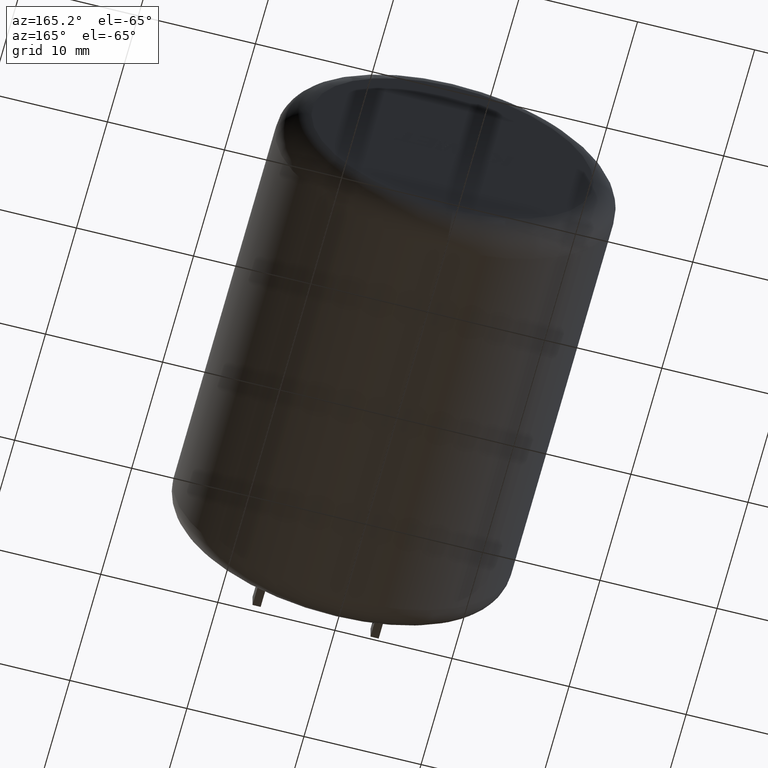
[diagram: clean part render]
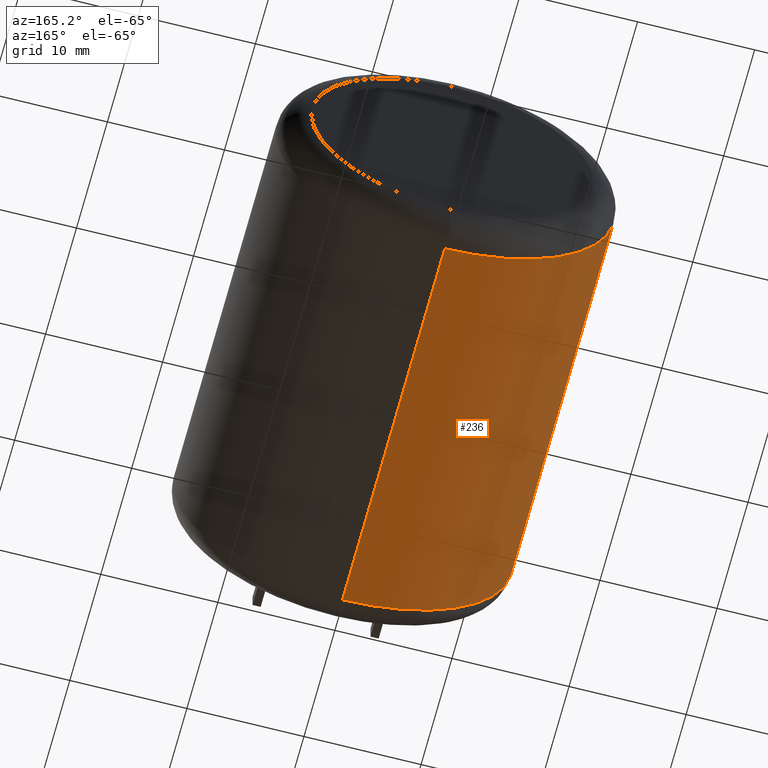
[diagram: same view with one face highlighted and labeled with its STEP entity id]
A machine part, auxiliary view. The second image highlights one B-rep face of the part: STEP entity #236.
In plain terms, the highlighted cylindrical surface (partial cylindrical patch) has radius 14.5 mm, axis along (-0, -1, -0).
Its self-contained STEP definition (entity closure, byte-faithful):
#75 = EDGE_CURVE ( 'NONE', #1357, #1742, #758, .T. ) ;
#84 = EDGE_LOOP ( 'NONE', ( #199, #1794, #134, #605 ) ) ;
#107 = CARTESIAN_POINT ( 'NONE',  ( -10.36606700977331400, 2.451000000000001800, 10.13876988341728800 ) ) ;
#134 = ORIENTED_EDGE ( 'NONE', *, *, #1608, .T. ) ;
#144 = LINE ( 'NONE', #2244, #1010 ) ;
#174 = AXIS2_PLACEMENT_3D ( 'NONE', #1300, #247, #1924 ) ;
#199 = ORIENTED_EDGE ( 'NONE', *, *, #2350, .T. ) ;
#236 = ADVANCED_FACE ( 'NONE', ( #2291 ), #2526, .T. ) ;
#247 = DIRECTION ( 'NONE',  ( -0.0000000000000000000, -1.000000000000000000, -0.0000000000000000000 ) ) ;
#317 = AXIS2_PLACEMENT_3D ( 'NONE', #462, #884, #1547 ) ;
#402 = CARTESIAN_POINT ( 'NONE',  ( 0.0000000000000000000, 35.54899999999999900, -14.50000000000000000 ) ) ;
#462 = CARTESIAN_POINT ( 'NONE',  ( 0.0000000000000000000, 38.00000000000000000, 0.0000000000000000000 ) ) ;
#471 = DIRECTION ( 'NONE',  ( 0.0000000000000000000, 0.0000000000000000000, 1.000000000000000000 ) ) ;
#605 = ORIENTED_EDGE ( 'NONE', *, *, #2552, .F. ) ;
#742 = CARTESIAN_POINT ( 'NONE',  ( 0.0000000000000000000, 2.451000000000001800, 0.0000000000000000000 ) ) ;
#758 = LINE ( 'NONE', #1475, #2021 ) ;
#884 = DIRECTION ( 'NONE',  ( -0.0000000000000000000, -1.000000000000000000, -0.0000000000000000000 ) ) ;
#1010 = VECTOR ( 'NONE', #1188, 1000.000000000000000 ) ;
#1048 = VERTEX_POINT ( 'NONE', #1642 ) ;
#1178 = DIRECTION ( 'NONE',  ( 0.0000000000000000000, 1.000000000000000000, 0.0000000000000000000 ) ) ;
#1188 = DIRECTION ( 'NONE',  ( 0.0000000000000000000, -1.000000000000000000, 0.0000000000000000000 ) ) ;
#1300 = CARTESIAN_POINT ( 'NONE',  ( 0.0000000000000000000, 35.54899999999999900, 0.0000000000000000000 ) ) ;
#1310 = CIRCLE ( 'NONE', #1386, 14.50000000000000000 ) ;
#1357 = VERTEX_POINT ( 'NONE', #402 ) ;
#1386 = AXIS2_PLACEMENT_3D ( 'NONE', #742, #1178, #471 ) ;
#1453 = CIRCLE ( 'NONE', #174, 14.50000000000000000 ) ;
#1475 = CARTESIAN_POINT ( 'NONE',  ( 0.0000000000000000000, 38.00000000000000000, -14.50000000000000000 ) ) ;
#1547 = DIRECTION ( 'NONE',  ( 0.0000000000000000000, 0.0000000000000000000, -1.000000000000000000 ) ) ;
#1608 = EDGE_CURVE ( 'NONE', #1742, #1989, #1310, .T. ) ;
#1642 = CARTESIAN_POINT ( 'NONE',  ( -10.36606700977331000, 35.54899999999999900, 10.13876988341729100 ) ) ;
#1742 = VERTEX_POINT ( 'NONE', #2238 ) ;
#1794 = ORIENTED_EDGE ( 'NONE', *, *, #75, .T. ) ;
#1924 = DIRECTION ( 'NONE',  ( 0.0000000000000000000, 0.0000000000000000000, 1.000000000000000000 ) ) ;
#1989 = VERTEX_POINT ( 'NONE', #107 ) ;
#2021 = VECTOR ( 'NONE', #2519, 1000.000000000000000 ) ;
#2238 = CARTESIAN_POINT ( 'NONE',  ( 0.0000000000000000000, 2.451000000000001800, -14.50000000000000000 ) ) ;
#2244 = CARTESIAN_POINT ( 'NONE',  ( -10.36606700977331000, 35.54899999999999900, 10.13876988341729100 ) ) ;
#2291 = FACE_OUTER_BOUND ( 'NONE', #84, .T. ) ;
#2350 = EDGE_CURVE ( 'NONE', #1048, #1357, #1453, .T. ) ;
#2519 = DIRECTION ( 'NONE',  ( -0.0000000000000000000, -1.000000000000000000, -0.0000000000000000000 ) ) ;
#2526 = CYLINDRICAL_SURFACE ( 'NONE', #317, 14.50000000000000000 ) ;
#2552 = EDGE_CURVE ( 'NONE', #1048, #1989, #144, .T. ) ;